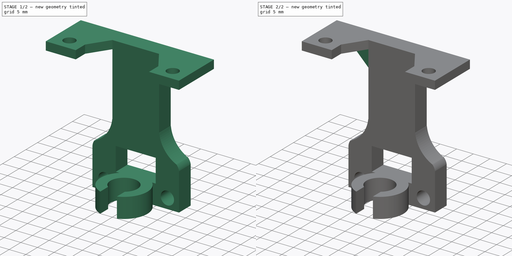
[diagram: build sequence overview — one tinted view per stage of 2, left to right]
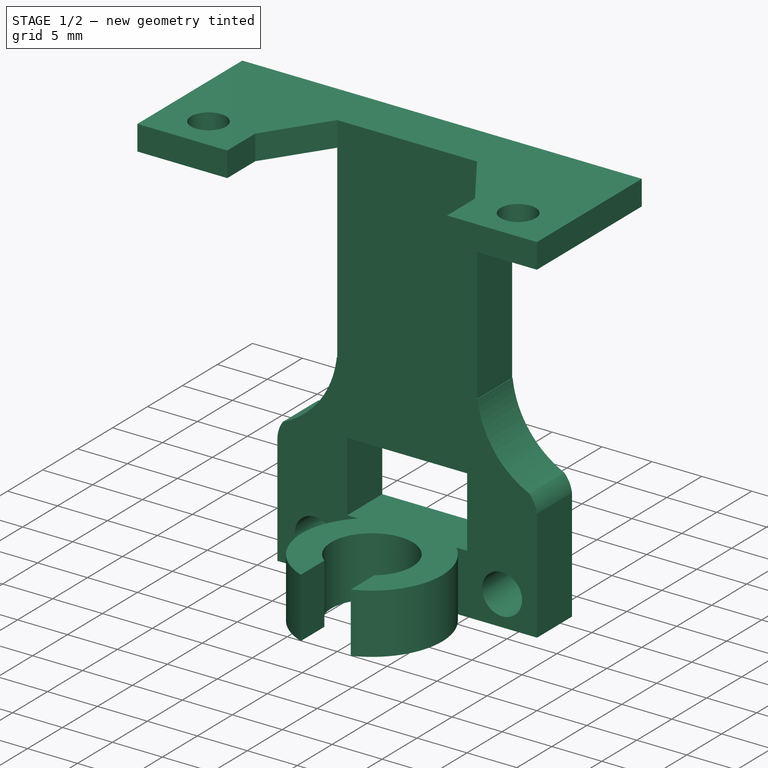
[diagram: stage 1 of 2 — iso view after this stage's code; geometry added in this stage tinted green]
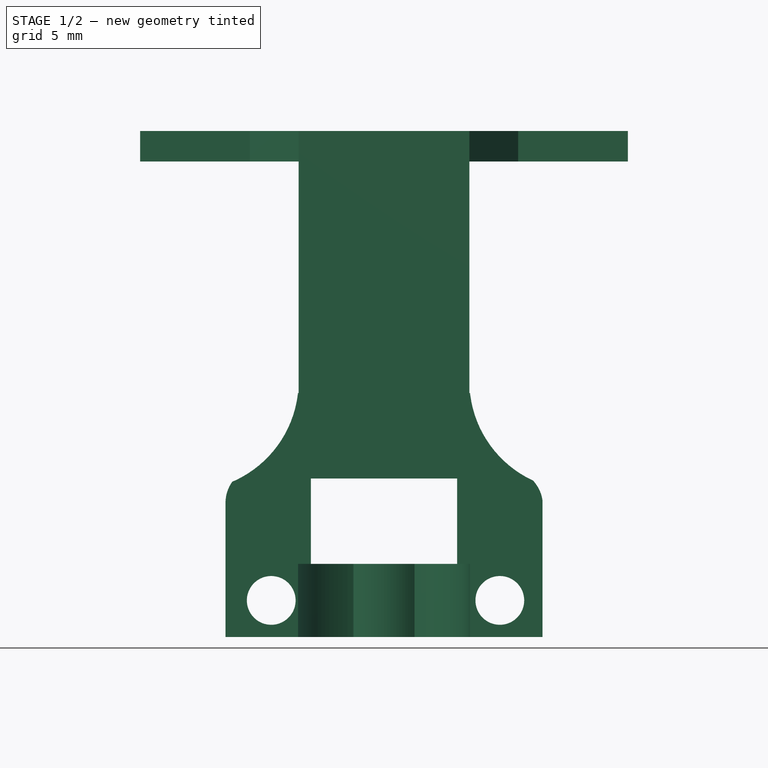
[diagram: stage 1 of 2 — front view after this stage's code; geometry added in this stage tinted green]
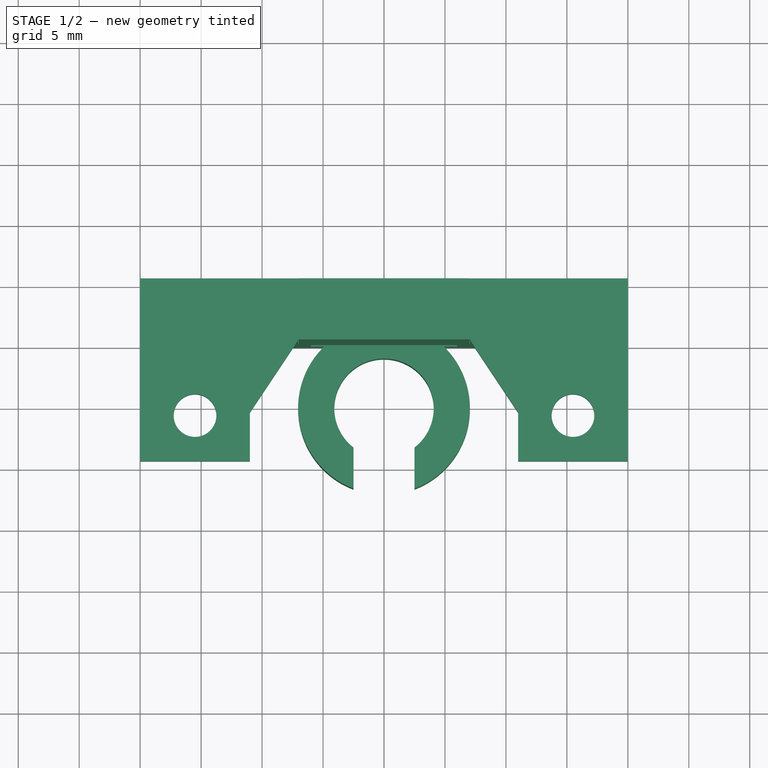
[diagram: stage 1 of 2 — top view after this stage's code; geometry added in this stage tinted green]
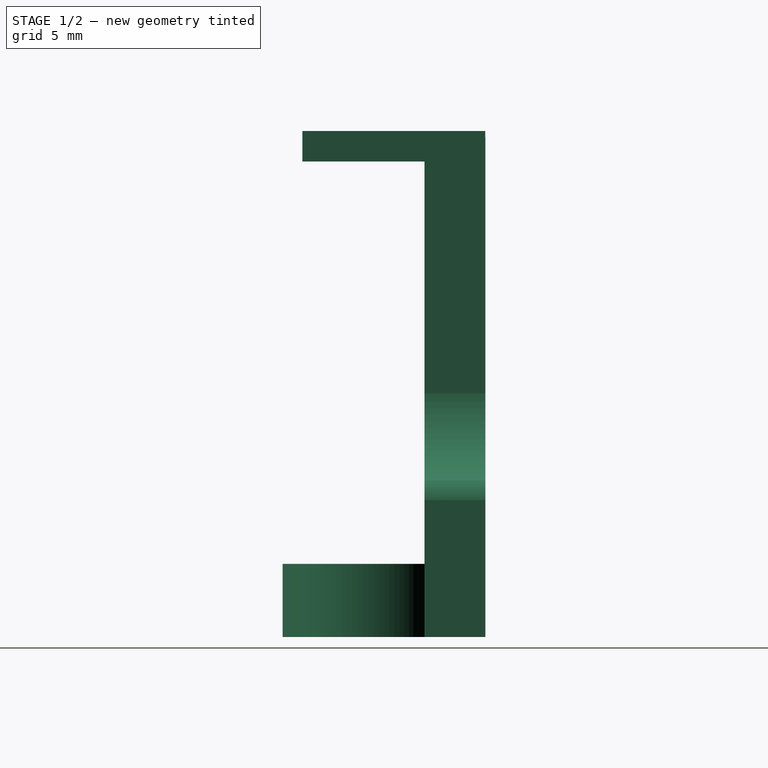
[diagram: stage 1 of 2 — right view after this stage's code; geometry added in this stage tinted green]
FCSTD DOCUMENT  (FreeCAD 0.15R4671 (Git))
Label: Z EndStop
License: CreativeCommons Attribution-ShareAlike
LicenseURL: http://creativecommons.org/licenses/by-sa/4.0/
objects: Part::Feature×1, Sketcher::SketchObject×1, PartDesign::Pad×1, Part::MultiFuse×1, Part::Chamfer×1
note: 6 computed .brp shape members not serialized (recipe doc carries the construction recipe); baked Part::Feature solids carry a one-line shape summary decoded from their .brp

FEATURE [Part::Feature] Z_axis_endstop001_solid001  label="Z_axis_endstop001 (Solid)001"
  Placement = pos=(0,-8.3,0) rot=(0,0,1;0rad)
  shape: bbox 26 x 16.64 x 41 mm, 438 faces (baked)
FEATURE [Sketcher::SketchObject] Sketch
  Placement = pos=(0,0,39) rot=(0,0,1;0rad)
  sketch-geometry (12):
    g0: LineSegment StartX=-20 StartY=0 StartZ=0 EndX=-20 EndY=-15 EndZ=0
    g1: LineSegment StartX=-11 StartY=-15 StartZ=0 EndX=-11 EndY=-11 EndZ=0
    g2: LineSegment StartX=-11 StartY=-11 StartZ=0 EndX=-7 EndY=-5 EndZ=0
    g3: LineSegment StartX=-7 StartY=-5 StartZ=0 EndX=7 EndY=-5 EndZ=0
    g4: LineSegment StartX=7 StartY=-5 StartZ=0 EndX=11 EndY=-11 EndZ=0
    g5: LineSegment StartX=11 StartY=-11 StartZ=0 EndX=11 EndY=-15 EndZ=0
    g6: LineSegment StartX=11 StartY=-15 StartZ=0 EndX=20 EndY=-15 EndZ=0
    g7: LineSegment StartX=20 StartY=-15 StartZ=0 EndX=20 EndY=0 EndZ=0
    g8: LineSegment StartX=20 StartY=0 StartZ=0 EndX=-20 EndY=0 EndZ=0
    g9: LineSegment StartX=-20 StartY=-15 StartZ=0 EndX=-11 EndY=-15 EndZ=0
    g10: Circle CenterX=15.5 CenterY=-11.25 CenterZ=0 NormalX=0 NormalY=0 NormalZ=1 Radius=1.75
    g11: Circle CenterX=-15.5 CenterY=-11.25 CenterZ=0 NormalX=0 NormalY=0 NormalZ=1 Radius=1.75
  constraints (33):
    c: Coincident(g1,g2)
    c: Coincident(g3,g4)
    c: Coincident(g9,g0)
    c: Coincident(g9,g1)
    c: Horizontal(g9)
    c: Coincident(g2,g3)
    c: Coincident(g4,g5)
    c: Coincident(g5,g6)
    c: Coincident(g6,g7)
    c: Coincident(g7,g8)
    c: Coincident(g8,g0)
    c: Horizontal(g6)
    c: Vertical(g1)
    c: Vertical(g7)
    c: Vertical(g5)
    c: Horizontal(g3)
    c: Symmetric(g0,g7,g-2)
    c: Symmetric(g1,g5,g-2)
    c: Symmetric(g2,g3,g-2)
    c: Symmetric(g1,g4,g-2)
    c: DistanceX(g3) = 14
    c: DistanceX(g9) = 9
    c: DistanceY(g1,g2) = 6
    c: DistanceY(g0) = -15
    c: DistanceY(g2,g0) = 5
    c: Tangent(g8,g-1)
    c: DistanceX(g8) = -40
    c: Vertical(g0)
    c: Symmetric(g11,g10,g-2)
    c: Equal(g11,g10)
    c: Radius(g10) = 1.75
    c: DistanceX(g11,g0) = -4.5
    c: DistanceY(g11,g0) = 11.25
FEATURE [PartDesign::Pad] Pad
  Length = 2.5
  Length2 = 100
  Placement = pos=(0,0,39) rot=(0,0,1;0rad)
  Sketch = -> Sketch
  Type = 0
FEATURE [Part::MultiFuse] Fusion
  Shapes = -> [Pad,Z_axis_endstop001_solid001]
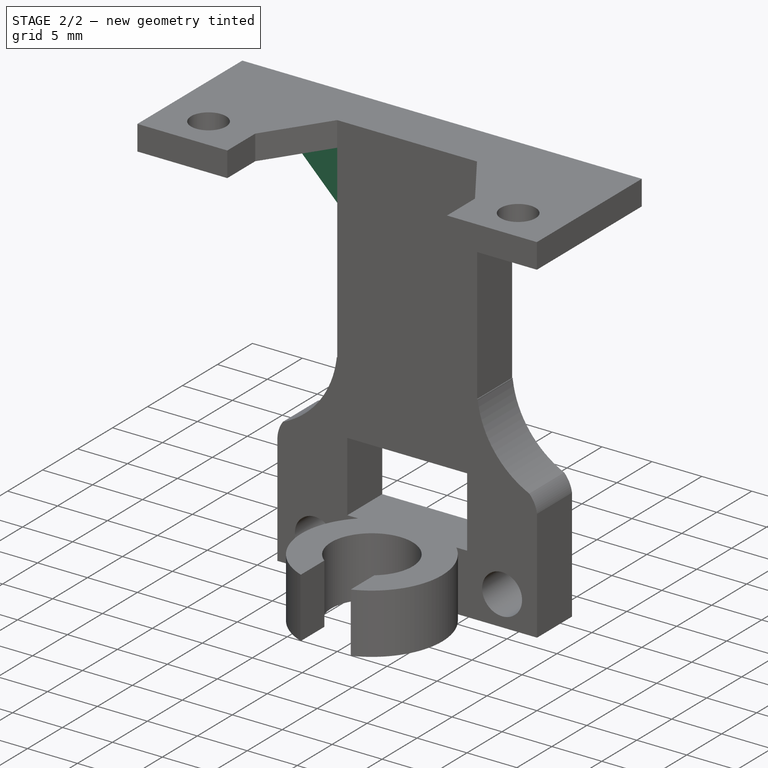
[diagram: stage 2 of 2 — iso view after this stage's code; geometry added in this stage tinted green]
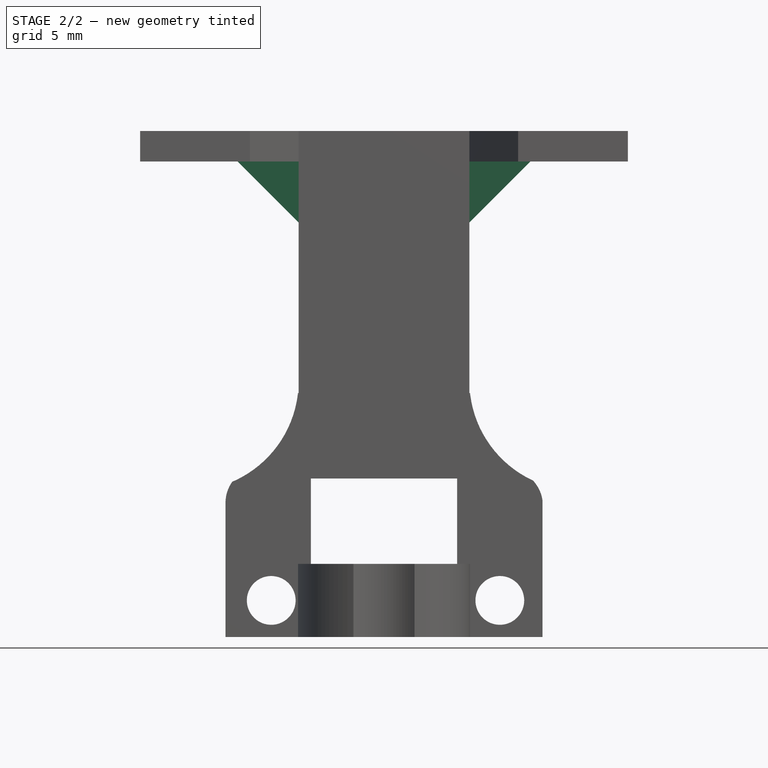
[diagram: stage 2 of 2 — front view after this stage's code; geometry added in this stage tinted green]
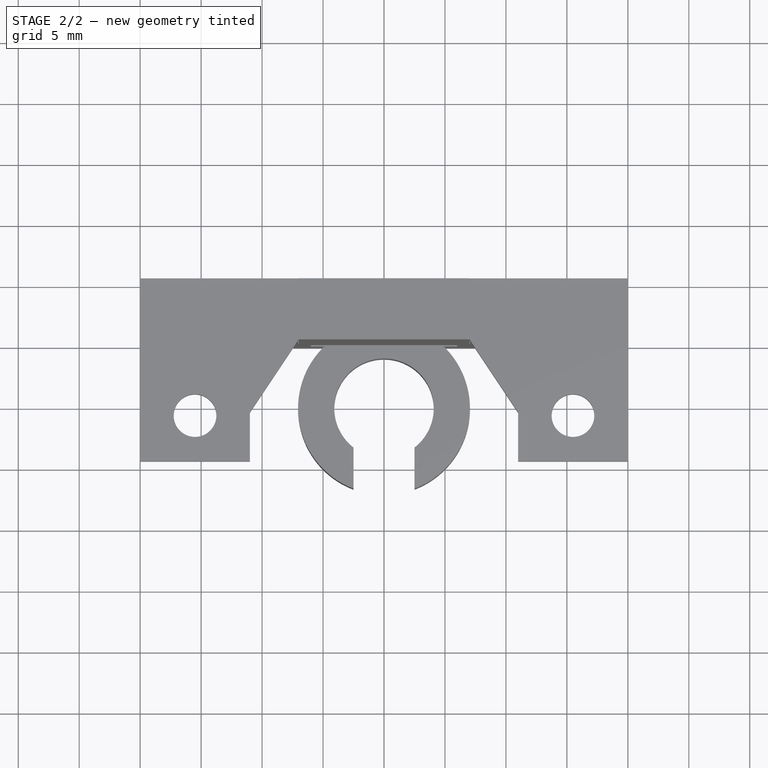
[diagram: stage 2 of 2 — top view after this stage's code; geometry added in this stage tinted green]
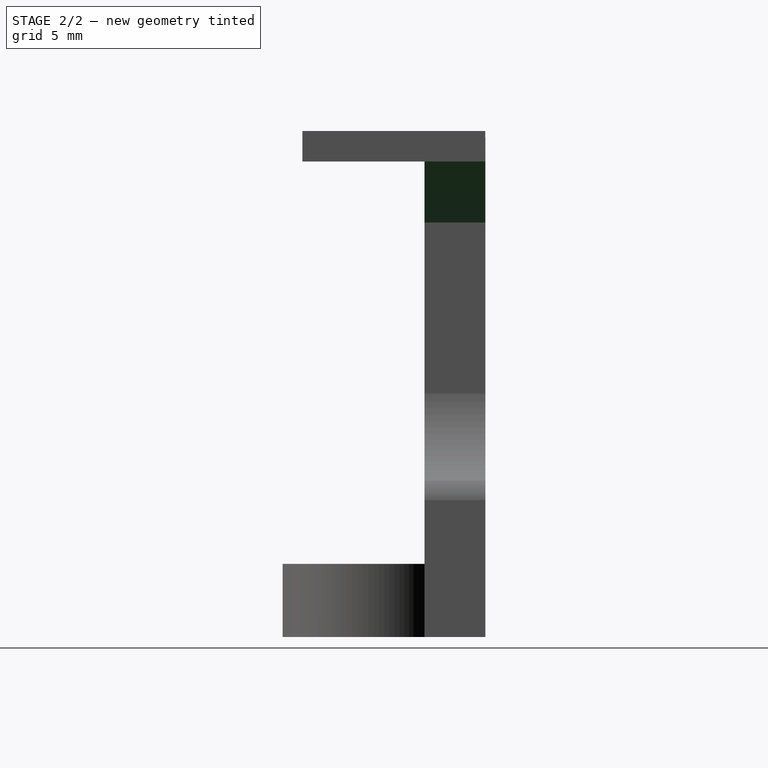
[diagram: stage 2 of 2 — right view after this stage's code; geometry added in this stage tinted green]
FEATURE [Part::Chamfer] Chamfer
  Base = -> Fusion
  Edges = 2 edges r=5: [Edge22,Edge24]
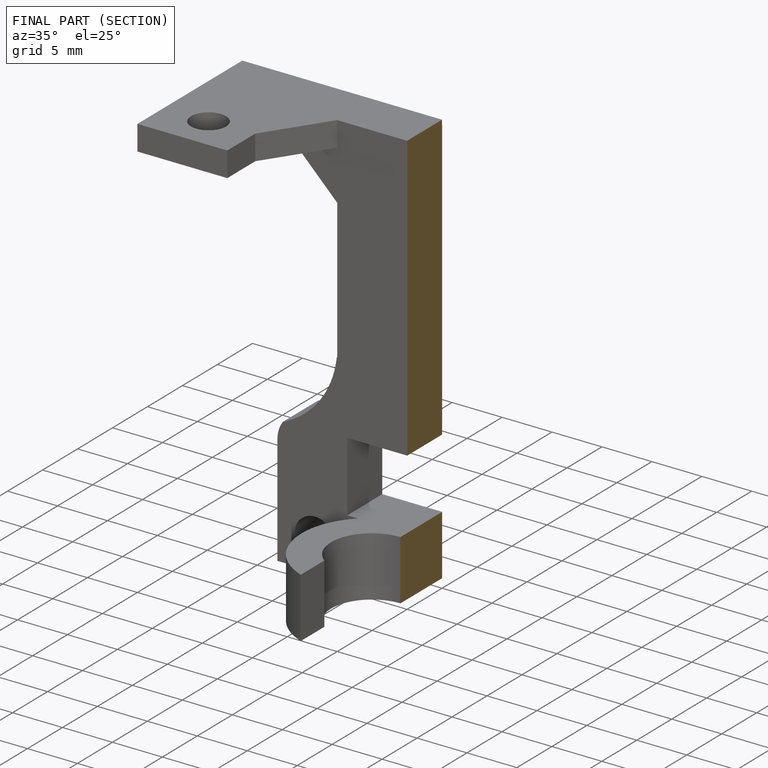
[diagram: finished part — half-section view (interior)]
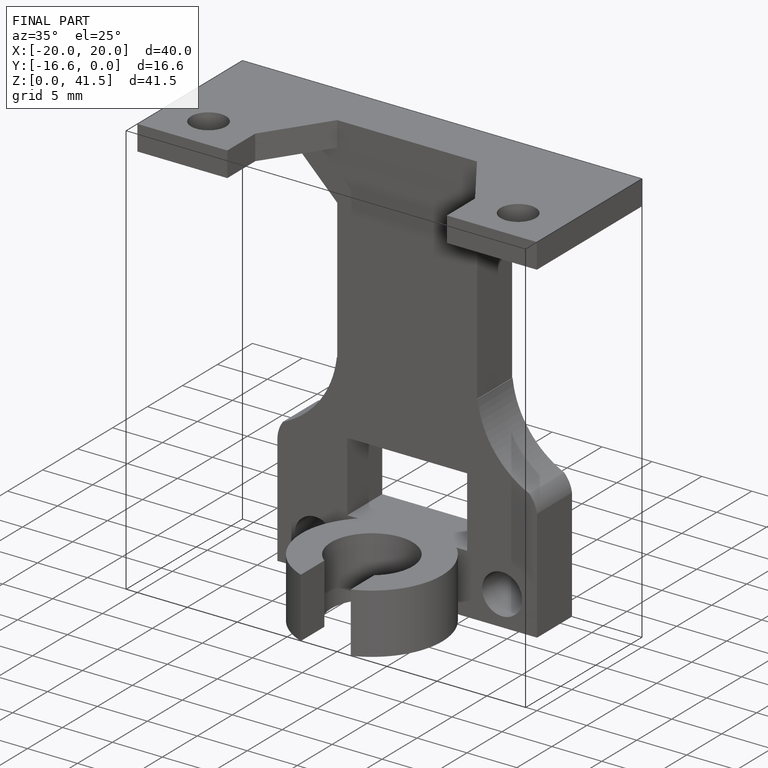
[diagram: finished part — iso view with bounding-box wireframe]
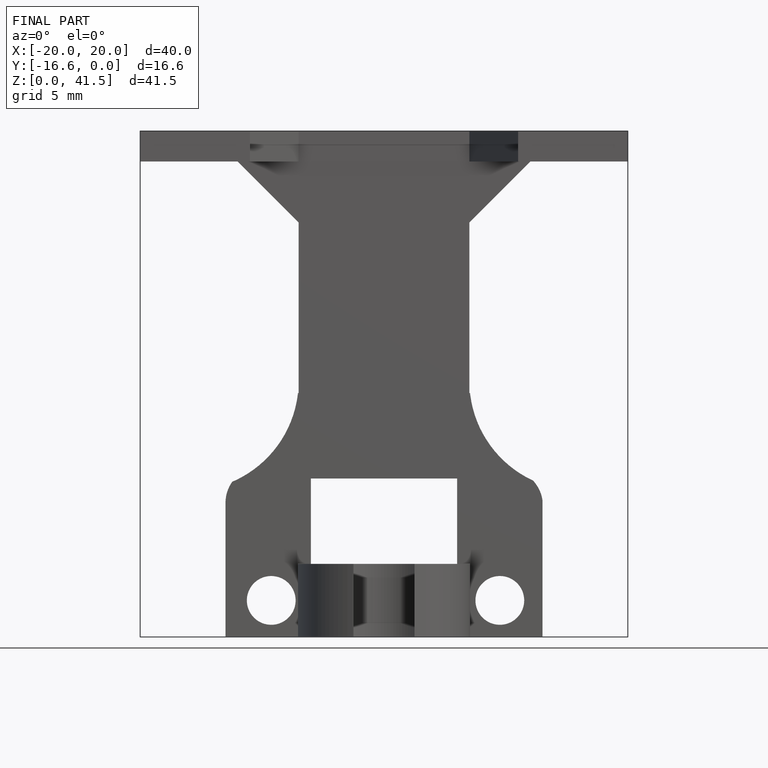
[diagram: finished part — front view with bounding-box wireframe]
